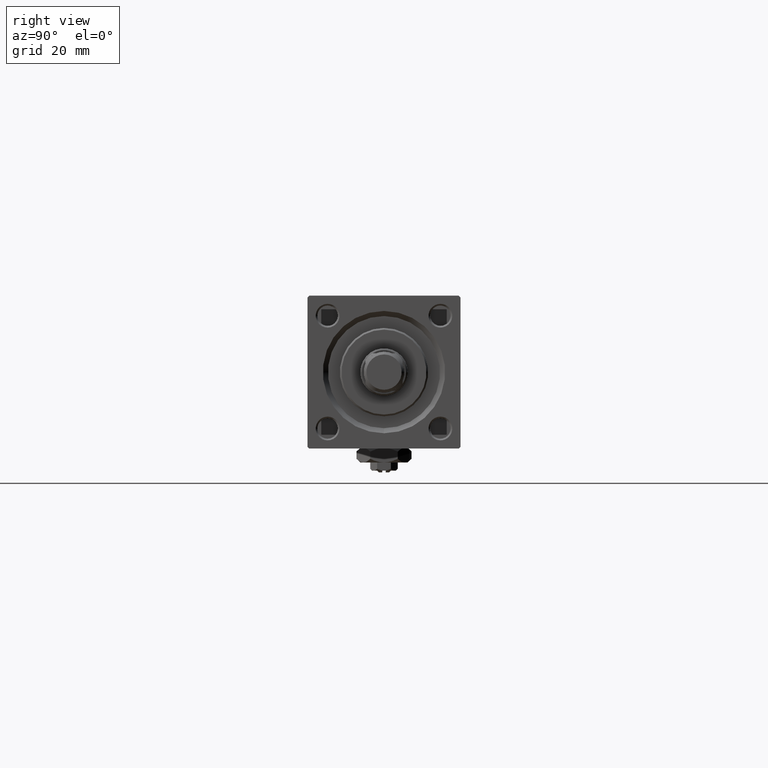
[diagram: clean part render]
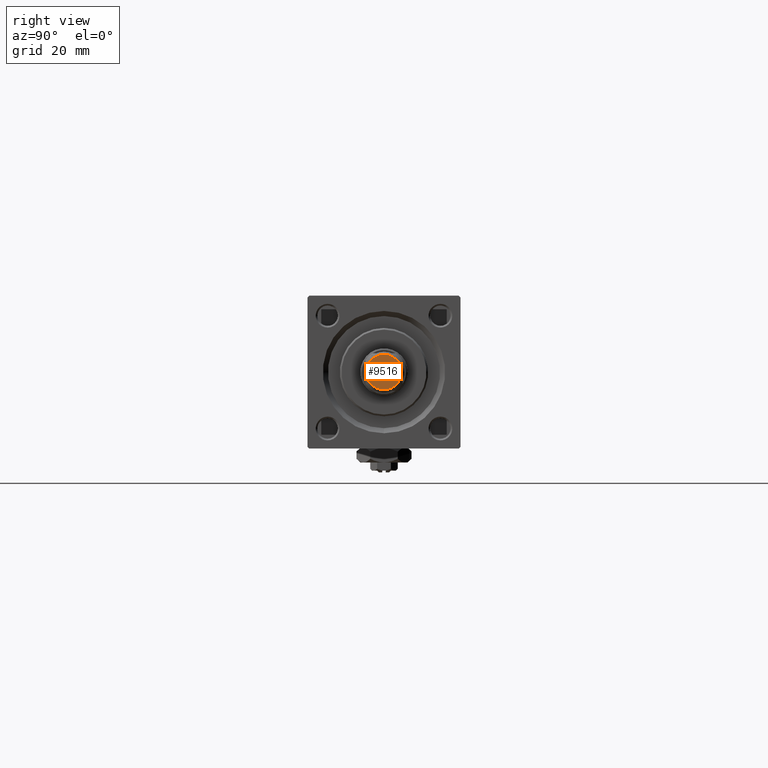
[diagram: same view with one face highlighted and labeled with its STEP entity id]
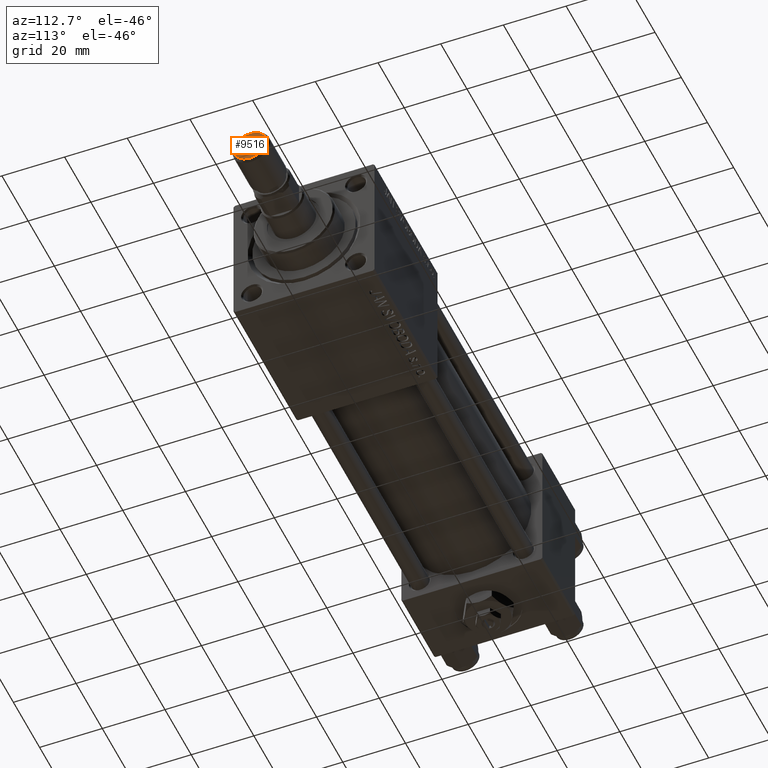
[diagram: same view with one face highlighted and labeled with its STEP entity id]
A machine part, right view. The second image highlights one B-rep face of the part: STEP entity #9516.
A second angle (auxiliary view) of the same face is appended — the face is thin or edge-on in the first view.
In plain terms, the highlighted planar face has unit normal (-1, 0, 0).
Its self-contained STEP definition (entity closure, byte-faithful):
#1464 = ORIENTED_EDGE ( 'NONE', *, *, #22318, .T. ) ;
#1746 = ORIENTED_EDGE ( 'NONE', *, *, #28551, .T. ) ;
#1861 = CARTESIAN_POINT ( 'NONE',  ( -5.199999999999992184, 6.858022075225173621E-16, 0.000000000000000000 ) ) ;
#3053 = VERTEX_POINT ( 'NONE', #26458 ) ;
#6257 = DIRECTION ( 'NONE',  ( 1.000000000000000000, 0.000000000000000000, -0.000000000000000000 ) ) ;
#6350 = DIRECTION ( 'NONE',  ( -0.000000000000000000, -0.000000000000000000, -1.000000000000000000 ) ) ;
#7116 = VERTEX_POINT ( 'NONE', #1861 ) ;
#8681 = FACE_OUTER_BOUND ( 'NONE', #38260, .T. ) ;
#9516 = ADVANCED_FACE ( 'NONE', ( #8681 ), #37028, .F. ) ;
#12885 = AXIS2_PLACEMENT_3D ( 'NONE', #21995, #6350, #30731 ) ;
#19509 = CARTESIAN_POINT ( 'NONE',  ( 0.000000000000000000, 0.000000000000000000, 0.000000000000000000 ) ) ;
#19759 = AXIS2_PLACEMENT_3D ( 'NONE', #19509, #32239, #35682 ) ;
#21995 = CARTESIAN_POINT ( 'NONE',  ( 0.000000000000000000, 0.000000000000000000, 0.000000000000000000 ) ) ;
#22318 = EDGE_CURVE ( 'NONE', #7116, #3053, #35742, .T. ) ;
#26458 = CARTESIAN_POINT ( 'NONE',  ( 5.199999999999992184, 0.000000000000000000, 0.000000000000000000 ) ) ;
#28551 = EDGE_CURVE ( 'NONE', #3053, #7116, #33314, .T. ) ;
#30731 = DIRECTION ( 'NONE',  ( 1.000000000000000000, 0.000000000000000000, 0.000000000000000000 ) ) ;
#32239 = DIRECTION ( 'NONE',  ( -0.000000000000000000, -0.000000000000000000, -1.000000000000000000 ) ) ;
#33314 = CIRCLE ( 'NONE', #19759, 5.199999999999992184 ) ;
#35682 = DIRECTION ( 'NONE',  ( 1.000000000000000000, 0.000000000000000000, 0.000000000000000000 ) ) ;
#35742 = CIRCLE ( 'NONE', #12885, 5.199999999999992184 ) ;
#37028 = PLANE ( 'NONE',  #40115 ) ;
#38260 = EDGE_LOOP ( 'NONE', ( #1746, #1464 ) ) ;
#40115 = AXIS2_PLACEMENT_3D ( 'NONE', #42294, #46517, #6257 ) ;
#42294 = CARTESIAN_POINT ( 'NONE',  ( 0.000000000000000000, 0.000000000000000000, 0.000000000000000000 ) ) ;
#46517 = DIRECTION ( 'NONE',  ( 0.000000000000000000, 0.000000000000000000, 1.000000000000000000 ) ) ;